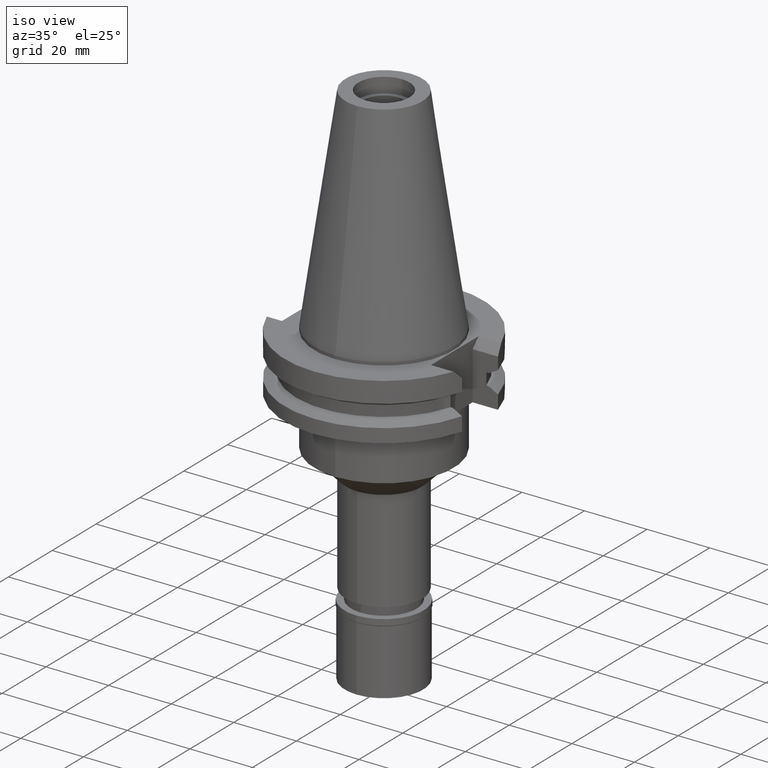
[diagram: clean part render]
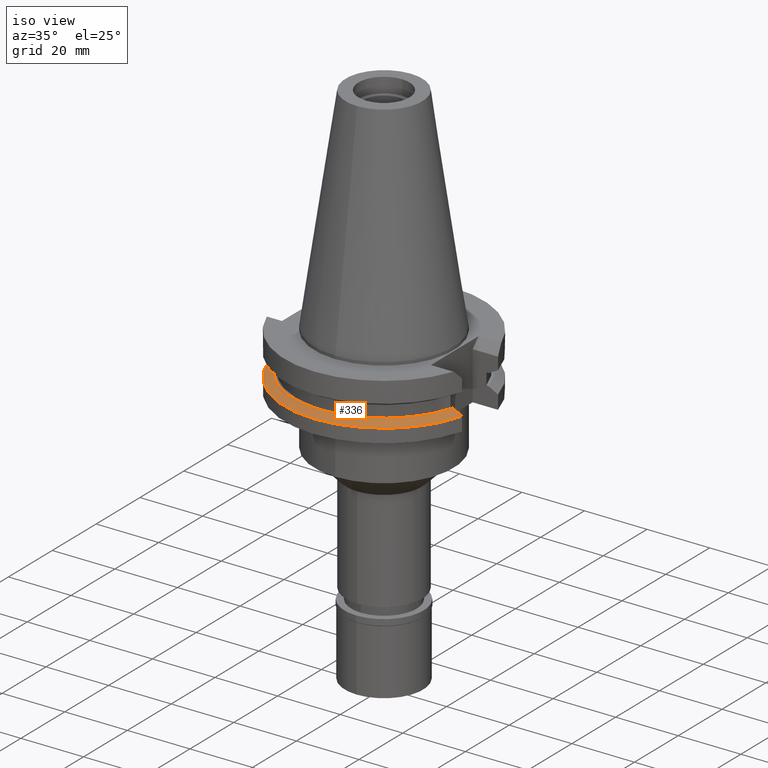
[diagram: same view with one face highlighted and labeled with its STEP entity id]
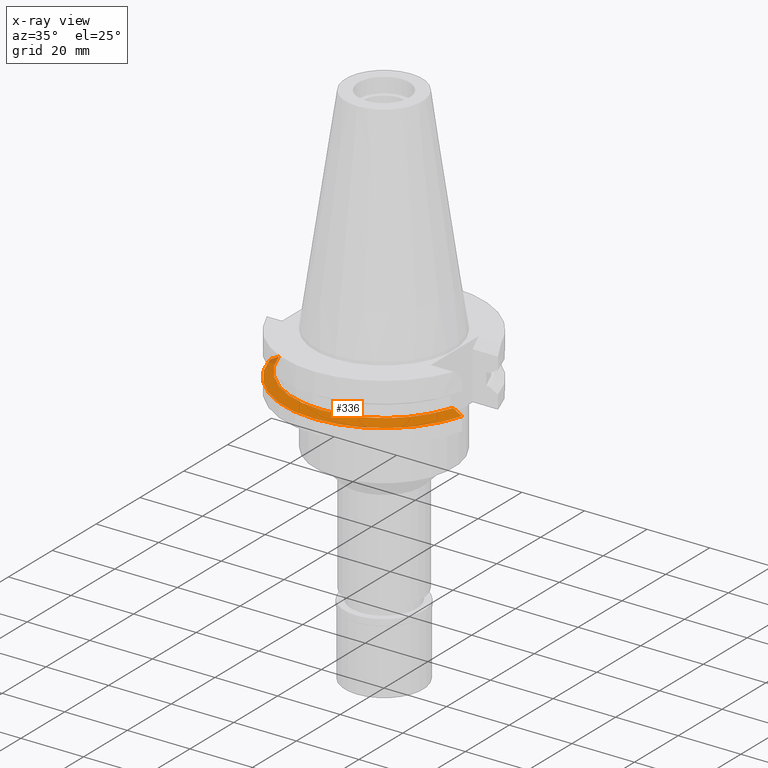
[diagram: x-ray of the same camera — body ghosted, the highlighted face saturated]
A machine part, iso view. The second image highlights one B-rep face of the part: STEP entity #336.
The next image is the same camera in x-ray: the body ghosted, the highlighted face saturated — about 2% of this face is hidden behind the body in this view.
In plain terms, the highlighted conical surface has half-angle 60 deg.
Its self-contained STEP definition (entity closure, byte-faithful):
#49 = DIRECTION ( 'NONE',  ( 0.0000000000000000000, 0.0000000000000000000, -1.000000000000000000 ) ) ;
#99 = DIRECTION ( 'NONE',  ( 0.0000000000000000000, 0.0000000000000000000, -1.000000000000000000 ) ) ;
#202 = CARTESIAN_POINT ( 'NONE',  ( -27.78617704714999803, -8.189999360223000124, -13.04749999999999943 ) ) ;
#277 = EDGE_CURVE ( 'NONE', #2275, #1971, #2076, .T. ) ;
#306 = VERTEX_POINT ( 'NONE', #2683 ) ;
#336 = ADVANCED_FACE ( 'NONE', ( #385 ), #1487, .T. ) ;
#385 = FACE_OUTER_BOUND ( 'NONE', #3168, .T. ) ;
#399 = CARTESIAN_POINT ( 'NONE',  ( -30.67550165945999652, -8.189999874256999490, -14.65366564543000116 ) ) ;
#545 = CARTESIAN_POINT ( 'NONE',  ( 30.34686914068999997, -8.190000606396001359, -14.47035736378999893 ) ) ;
#591 = CARTESIAN_POINT ( 'NONE',  ( 28.73158395115000019, -8.189999991741000684, -13.57153622368999990 ) ) ;
#595 = EDGE_CURVE ( 'NONE', #923, #306, #1826, .T. ) ;
#693 = DIRECTION ( 'NONE',  ( 0.0000000000000000000, 0.0000000000000000000, -1.000000000000000000 ) ) ;
#718 = CARTESIAN_POINT ( 'NONE',  ( -30.34687526758000331, -8.189999874256999490, -14.47035412637000107 ) ) ;
#739 = CARTESIAN_POINT ( 'NONE',  ( -29.69468757190000119, -8.189999973377000586, -14.10694918383999941 ) ) ;
#760 = EDGE_CURVE ( 'NONE', #1971, #923, #3204, .T. ) ;
#819 = DIRECTION ( 'NONE',  ( 0.9661575315241073270, -0.2579527559055020958, 0.0000000000000000000 ) ) ;
#923 = VERTEX_POINT ( 'NONE', #399 ) ;
#935 = DIRECTION ( 'NONE',  ( 0.0000000000000000000, -1.000000000000000000, 0.0000000000000000000 ) ) ;
#937 = CIRCLE ( 'NONE', #2650, 28.96803755052999918 ) ;
#1038 = ORIENTED_EDGE ( 'NONE', *, *, #760, .F. ) ;
#1487 = CONICAL_SURFACE ( 'NONE', #2077, 30.35901877526999826, 1.047197551196400456 ) ;
#1500 = ORIENTED_EDGE ( 'NONE', *, *, #3218, .T. ) ;
#1757 = CARTESIAN_POINT ( 'NONE',  ( -28.09962546409000339, -8.189999360223000124, -13.22108613584000025 ) ) ;
#1822 = CARTESIAN_POINT ( 'NONE',  ( 28.09962528668999937, -8.190000190954000558, -13.22109296050999916 ) ) ;
#1826 = B_SPLINE_CURVE_WITH_KNOTS ( 'NONE', 3,
 ( #2058, #718, #739, #2502, #1757, #202 ),
 .UNSPECIFIED., .F., .F.,
 ( 4, 1, 1, 4 ),
 ( 0.0000000000000000000, 0.3333333333333000081, 0.6666666666667000474, 1.000000000000000000 ),
 .UNSPECIFIED. ) ;
#1833 = CARTESIAN_POINT ( 'NONE',  ( 0.0000000000000000000, 0.0000000000000000000, -14.65366676908000088 ) ) ;
#1870 = CARTESIAN_POINT ( 'NONE',  ( 27.78616453799999775, -8.190000190954000558, -13.04749999999999943 ) ) ;
#1947 = DIRECTION ( 'NONE',  ( 0.0000000000000000000, -1.000000000000000000, 0.0000000000000000000 ) ) ;
#1971 = VERTEX_POINT ( 'NONE', #2155 ) ;
#2058 = CARTESIAN_POINT ( 'NONE',  ( -30.67550165945999652, -8.189999874256999490, -14.65366564543000116 ) ) ;
#2076 = B_SPLINE_CURVE_WITH_KNOTS ( 'NONE', 3,
 ( #1870, #1822, #591, #2637, #545, #2094 ),
 .UNSPECIFIED., .F., .F.,
 ( 4, 1, 1, 4 ),
 ( 0.0000000000000000000, 0.3333333333333000081, 0.6666666666667000474, 1.000000000000000000 ),
 .UNSPECIFIED. ) ;
#2077 = AXIS2_PLACEMENT_3D ( 'NONE', #2170, #99, #1947 ) ;
#2080 = AXIS2_PLACEMENT_3D ( 'NONE', #1833, #49, #819 ) ;
#2094 = CARTESIAN_POINT ( 'NONE',  ( 30.67550146398999900, -8.190000606396001359, -14.65367218795000070 ) ) ;
#2155 = CARTESIAN_POINT ( 'NONE',  ( 30.67550146398999900, -8.190000606396001359, -14.65367218795000070 ) ) ;
#2170 = CARTESIAN_POINT ( 'NONE',  ( 0.0000000000000000000, 0.0000000000000000000, -13.85058338454000015 ) ) ;
#2213 = CARTESIAN_POINT ( 'NONE',  ( 0.0000000000000000000, 0.0000000000000000000, -13.04749999999999943 ) ) ;
#2275 = VERTEX_POINT ( 'NONE', #3079 ) ;
#2502 = CARTESIAN_POINT ( 'NONE',  ( -28.73158913617999843, -8.190000281796999460, -13.57154194045999951 ) ) ;
#2637 = CARTESIAN_POINT ( 'NONE',  ( 29.69468593088999953, -8.189999742476000932, -14.10694560794000019 ) ) ;
#2650 = AXIS2_PLACEMENT_3D ( 'NONE', #2213, #693, #935 ) ;
#2683 = CARTESIAN_POINT ( 'NONE',  ( -27.78617704714999803, -8.189999360223000124, -13.04749999999999943 ) ) ;
#2931 = ORIENTED_EDGE ( 'NONE', *, *, #595, .F. ) ;
#3079 = CARTESIAN_POINT ( 'NONE',  ( 27.78616453799999775, -8.190000190954000558, -13.04749999999999943 ) ) ;
#3168 = EDGE_LOOP ( 'NONE', ( #3245, #1500, #2931, #1038 ) ) ;
#3204 = CIRCLE ( 'NONE', #2080, 31.74999999999998579 ) ;
#3218 = EDGE_CURVE ( 'NONE', #2275, #306, #937, .T. ) ;
#3245 = ORIENTED_EDGE ( 'NONE', *, *, #277, .F. ) ;